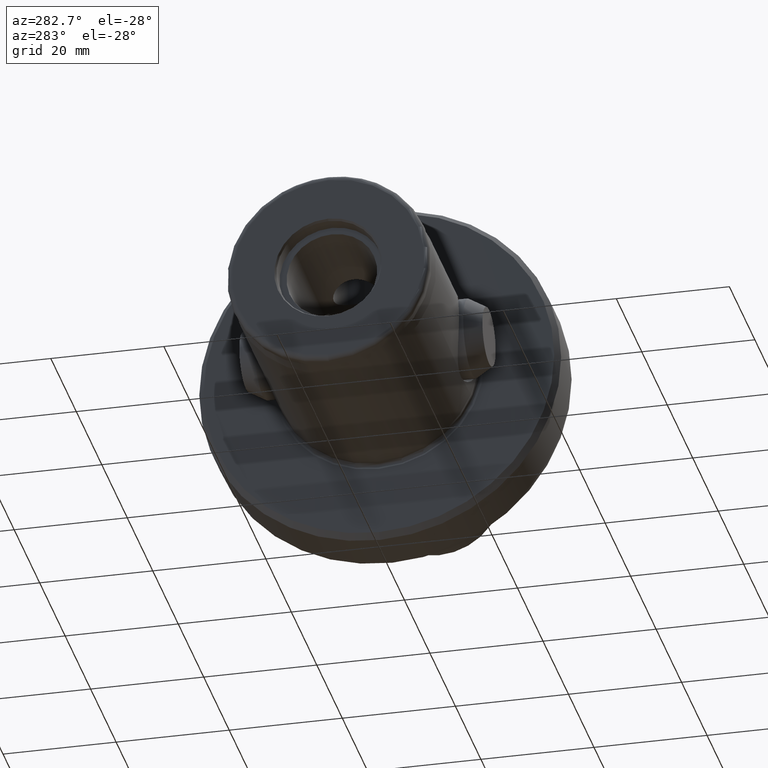
[diagram: clean part render]
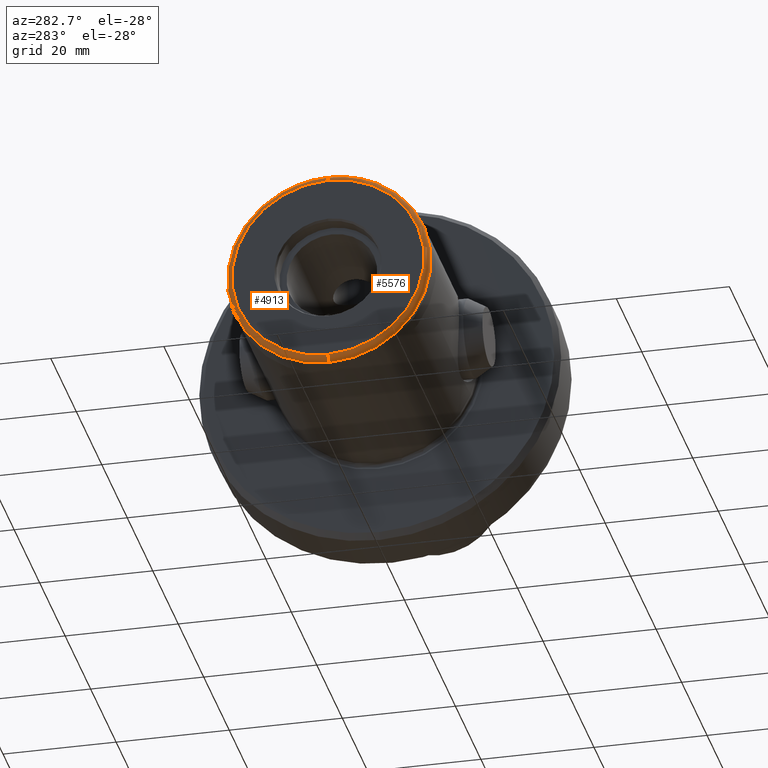
[diagram: same view with one multi-face feature highlighted, each face labeled with its STEP entity id]
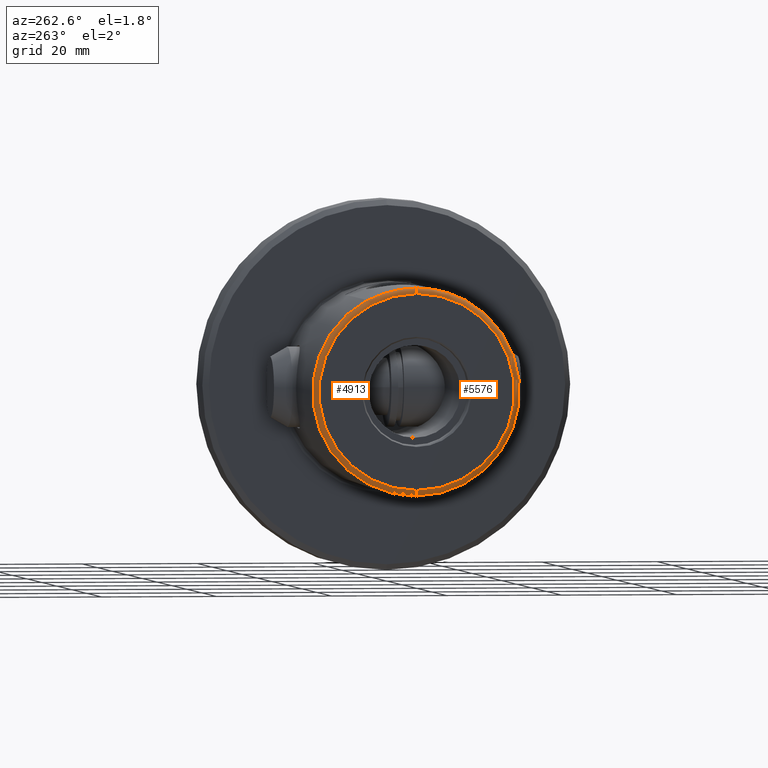
[diagram: same view with one multi-face feature highlighted, each face labeled with its STEP entity id]
A machine part, auxiliary view. The highlighted faces form ONE feature: a constant-radius fillet chain: 2 tangent blend faces with common blend radius 1 mm. The faces share edges in the B-rep.
A second angle (auxiliary view) of the same feature is appended — it is thin or edge-on in the first view.
Their STEP definitions:
[1] entity #5576 (Torus):
#52 = VERTEX_POINT ( 'NONE', #6538 ) ;
#162 = DIRECTION ( 'NONE',  ( 0.0000000000000000000, 0.0000000000000000000, 1.000000000000000000 ) ) ;
#220 = AXIS2_PLACEMENT_3D ( 'NONE', #5423, #6637, #3698 ) ;
#523 = DIRECTION ( 'NONE',  ( -1.000000000000000000, -0.0000000000000000000, -0.0000000000000000000 ) ) ;
#589 = CARTESIAN_POINT ( 'NONE',  ( 1.000000000000000000, 0.0000000000000000000, 16.99999999999999300 ) ) ;
#804 = AXIS2_PLACEMENT_3D ( 'NONE', #1608, #523, #2212 ) ;
#847 = EDGE_LOOP ( 'NONE', ( #3821, #6251, #3962, #7666, #4720, #1927 ) ) ;
#911 = VERTEX_POINT ( 'NONE', #1632 ) ;
#1004 = EDGE_CURVE ( 'NONE', #5470, #52, #7237, .T. ) ;
#1328 = TOROIDAL_SURFACE ( 'NONE', #5331, 16.99999999999999300, 0.9999999999999986700 ) ;
#1410 = CARTESIAN_POINT ( 'NONE',  ( 0.6542505968228119500, -8.499999999999998200, 15.79663165262243400 ) ) ;
#1608 = CARTESIAN_POINT ( 'NONE',  ( 1.173648177666930300, 0.0000000000000000000, 0.0000000000000000000 ) ) ;
#1632 = CARTESIAN_POINT ( 'NONE',  ( 0.6324404810102394200, 1.084901609420196100E-011, 17.93000000000000000 ) ) ;
#1754 = EDGE_CURVE ( 'NONE', #5470, #2087, #3919, .T. ) ;
#1927 = ORIENTED_EDGE ( 'NONE', *, *, #4673, .F. ) ;
#2059 = CARTESIAN_POINT ( 'NONE',  ( 0.7353313279269722000, -8.500000000000000000, 15.83055841179797200 ) ) ;
#2087 = VERTEX_POINT ( 'NONE', #7213 ) ;
#2093 = B_SPLINE_CURVE_WITH_KNOTS ( 'NONE', 3,
 ( #3819, #2640, #6880, #7501, #3894, #5060, #7480, #5083 ),
 .UNSPECIFIED., .F., .F.,
 ( 4, 2, 2, 4 ),
 ( 0.008901972889488393700, 0.01335500574124723900, 0.01558152216712666000, 0.01780803859300608000 ),
 .UNSPECIFIED. ) ;
#2212 = DIRECTION ( 'NONE',  ( 0.0000000000000000000, 0.0000000000000000000, 1.000000000000000000 ) ) ;
#2491 = CIRCLE ( 'NONE', #4109, 0.9999999999999974500 ) ;
#2640 = CARTESIAN_POINT ( 'NONE',  ( 0.6324404810102310900, -1.477174373625175700, 17.93000000000089100 ) ) ;
#2858 = DIRECTION ( 'NONE',  ( 0.0000000000000000000, 0.0000000000000000000, -1.000000000000000000 ) ) ;
#2915 = B_SPLINE_CURVE_WITH_KNOTS ( 'NONE', 3,
 ( #5048, #2059, #7440, #3269, #5262, #3472 ),
 .UNSPECIFIED., .F., .F.,
 ( 4, 2, 4 ),
 ( 0.0001466622458616963000, 0.0004103328053952654700, 0.0006740033649288346100 ),
 .UNSPECIFIED. ) ;
#2959 = DIRECTION ( 'NONE',  ( -1.000000000000000000, -0.0000000000000000000, -0.0000000000000000000 ) ) ;
#3185 = DIRECTION ( 'NONE',  ( 0.0000000000000000000, 0.0000000000000000000, 1.000000000000000000 ) ) ;
#3269 = CARTESIAN_POINT ( 'NONE',  ( 0.9975680448668020600, -8.500000000000000000, 15.87099631239577800 ) ) ;
#3472 = CARTESIAN_POINT ( 'NONE',  ( 1.173648177666928100, -8.500000000000000000, 15.84939462291252400 ) ) ;
#3676 = EDGE_CURVE ( 'NONE', #911, #4759, #2491, .T. ) ;
#3698 = DIRECTION ( 'NONE',  ( 0.0000000000000000000, -1.224646799147353700E-016, 1.000000000000000000 ) ) ;
#3819 = CARTESIAN_POINT ( 'NONE',  ( 0.6324404810102394200, 1.084901609420196100E-011, 17.93000000000000000 ) ) ;
#3821 = ORIENTED_EDGE ( 'NONE', *, *, #1754, .F. ) ;
#3894 = CARTESIAN_POINT ( 'NONE',  ( 0.6418628716970348200, -5.791349221315153200, 16.98894936551009800 ) ) ;
#3919 = CIRCLE ( 'NONE', #220, 0.9999999999999974500 ) ;
#3962 = ORIENTED_EDGE ( 'NONE', *, *, #4733, .F. ) ;
#4109 = AXIS2_PLACEMENT_3D ( 'NONE', #589, #7025, #2858 ) ;
#4132 = EDGE_CURVE ( 'NONE', #911, #4581, #2093, .T. ) ;
#4581 = VERTEX_POINT ( 'NONE', #1410 ) ;
#4673 = EDGE_CURVE ( 'NONE', #2087, #4759, #6999, .T. ) ;
#4720 = ORIENTED_EDGE ( 'NONE', *, *, #3676, .T. ) ;
#4727 = CARTESIAN_POINT ( 'NONE',  ( 1.000000000000000000, 0.0000000000000000000, 0.0000000000000000000 ) ) ;
#4733 = EDGE_CURVE ( 'NONE', #4581, #52, #2915, .T. ) ;
#4759 = VERTEX_POINT ( 'NONE', #6493 ) ;
#5048 = CARTESIAN_POINT ( 'NONE',  ( 0.6542505968228119500, -8.499999999999998200, 15.79663165262243400 ) ) ;
#5060 = CARTESIAN_POINT ( 'NONE',  ( 0.6473328774351114800, -7.171914618821857900, 16.45607394266993900 ) ) ;
#5083 = CARTESIAN_POINT ( 'NONE',  ( 0.6542505968228119500, -8.499999999999998200, 15.79663165262243400 ) ) ;
#5222 = AXIS2_PLACEMENT_3D ( 'NONE', #5527, #7308, #3185 ) ;
#5262 = CARTESIAN_POINT ( 'NONE',  ( 1.087046924922161000, -8.500000000000000000, 15.86672212925783400 ) ) ;
#5331 = AXIS2_PLACEMENT_3D ( 'NONE', #4727, #2959, #162 ) ;
#5423 = CARTESIAN_POINT ( 'NONE',  ( 1.000000000000000000, 2.081899558550499900E-015, -16.99999999999999300 ) ) ;
#5470 = VERTEX_POINT ( 'NONE', #5852 ) ;
#5527 = CARTESIAN_POINT ( 'NONE',  ( 1.301042606982605300E-015, 0.0000000000000000000, 0.0000000000000000000 ) ) ;
#5576 = ADVANCED_FACE ( 'NONE', ( #7488 ), #1328, .T. ) ;
#5852 = CARTESIAN_POINT ( 'NONE',  ( 1.173648177666930300, 2.202503724800689100E-015, -17.98480775301219800 ) ) ;
#6251 = ORIENTED_EDGE ( 'NONE', *, *, #1004, .T. ) ;
#6493 = CARTESIAN_POINT ( 'NONE',  ( 1.301042606982605300E-015, 0.0000000000000000000, 16.99999999999999300 ) ) ;
#6538 = CARTESIAN_POINT ( 'NONE',  ( 1.173648177666928100, -8.500000000000000000, 15.84939462291252400 ) ) ;
#6637 = DIRECTION ( 'NONE',  ( -0.0000000000000000000, 1.000000000000000000, 1.224646799147353200E-016 ) ) ;
#6880 = CARTESIAN_POINT ( 'NONE',  ( 0.6341946138444216600, -2.931739006507350100, 17.75087531868819800 ) ) ;
#6999 = CIRCLE ( 'NONE', #5222, 16.99999999999999300 ) ;
#7025 = DIRECTION ( 'NONE',  ( 0.0000000000000000000, -1.000000000000000000, 0.0000000000000000000 ) ) ;
#7213 = CARTESIAN_POINT ( 'NONE',  ( 1.301042606982605300E-015, 2.142201641675594700E-015, -16.99999999999999300 ) ) ;
#7237 = CIRCLE ( 'NONE', #804, 17.98480775301219800 ) ;
#7308 = DIRECTION ( 'NONE',  ( -1.000000000000000000, -0.0000000000000000000, -0.0000000000000000000 ) ) ;
#7440 = CARTESIAN_POINT ( 'NONE',  ( 0.8226130981639858700, -8.500000000000000000, 15.85307747733669200 ) ) ;
#7480 = CARTESIAN_POINT ( 'NONE',  ( 0.6505332994144168400, -7.844784301745543900, 16.14764083699741100 ) ) ;
#7488 = FACE_OUTER_BOUND ( 'NONE', #847, .T. ) ;
#7501 = CARTESIAN_POINT ( 'NONE',  ( 0.6395865202884518700, -5.079749327030166100, 17.21412044207524200 ) ) ;
#7666 = ORIENTED_EDGE ( 'NONE', *, *, #4132, .F. ) ;
[2] entity #4913 (Torus):
#10 = CARTESIAN_POINT ( 'NONE',  ( 0.6324404810102417500, 0.3691144895278956600, 17.92999999999978300 ) ) ;
#108 = DIRECTION ( 'NONE',  ( -1.000000000000000000, -0.0000000000000000000, -0.0000000000000000000 ) ) ;
#204 = CARTESIAN_POINT ( 'NONE',  ( 1.087489751224860900, 8.500000000000003600, 15.86663352689551800 ) ) ;
#220 = AXIS2_PLACEMENT_3D ( 'NONE', #5423, #6637, #3698 ) ;
#274 = DIRECTION ( 'NONE',  ( 0.0000000000000000000, 0.0000000000000000000, 1.000000000000000000 ) ) ;
#315 = CARTESIAN_POINT ( 'NONE',  ( 0.9981222527496900200, 8.500000000000003600, 15.87105069833618200 ) ) ;
#589 = CARTESIAN_POINT ( 'NONE',  ( 1.000000000000000000, 0.0000000000000000000, 16.99999999999999300 ) ) ;
#690 = DIRECTION ( 'NONE',  ( 0.0000000000000000000, 0.0000000000000000000, 1.000000000000000000 ) ) ;
#911 = VERTEX_POINT ( 'NONE', #1632 ) ;
#1289 = CARTESIAN_POINT ( 'NONE',  ( 1.000000000000000000, 0.0000000000000000000, 0.0000000000000000000 ) ) ;
#1389 = VERTEX_POINT ( 'NONE', #3367 ) ;
#1471 = DIRECTION ( 'NONE',  ( -1.000000000000000000, -0.0000000000000000000, -0.0000000000000000000 ) ) ;
#1632 = CARTESIAN_POINT ( 'NONE',  ( 0.6324404810102394200, 1.084901609420196100E-011, 17.93000000000000000 ) ) ;
#1754 = EDGE_CURVE ( 'NONE', #5470, #2087, #3919, .T. ) ;
#1770 = CARTESIAN_POINT ( 'NONE',  ( 0.6418423092002324400, 5.785599335574096000, 16.99096693161065000 ) ) ;
#1836 = DIRECTION ( 'NONE',  ( -1.000000000000000000, -0.0000000000000000000, -0.0000000000000000000 ) ) ;
#2032 = CIRCLE ( 'NONE', #2893, 17.98480775301219800 ) ;
#2087 = VERTEX_POINT ( 'NONE', #7213 ) ;
#2191 = ORIENTED_EDGE ( 'NONE', *, *, #7422, .F. ) ;
#2272 = CARTESIAN_POINT ( 'NONE',  ( 0.6330054133423558300, 1.480283589093579000, 17.87285194226907200 ) ) ;
#2330 = CARTESIAN_POINT ( 'NONE',  ( 0.6396017394597263200, 5.084105004543580700, 17.21261888832962900 ) ) ;
#2359 = AXIS2_PLACEMENT_3D ( 'NONE', #3255, #1471, #274 ) ;
#2404 = EDGE_CURVE ( 'NONE', #3336, #5470, #2032, .T. ) ;
#2491 = CIRCLE ( 'NONE', #4109, 0.9999999999999974500 ) ;
#2858 = DIRECTION ( 'NONE',  ( 0.0000000000000000000, 0.0000000000000000000, -1.000000000000000000 ) ) ;
#2888 = ORIENTED_EDGE ( 'NONE', *, *, #3676, .F. ) ;
#2893 = AXIS2_PLACEMENT_3D ( 'NONE', #6102, #1836, #3115 ) ;
#2912 = CARTESIAN_POINT ( 'NONE',  ( 0.6325534606832645700, 0.7409511913278217200, 17.91855654738308700 ) ) ;
#2937 = CARTESIAN_POINT ( 'NONE',  ( 0.6360243831397884900, 3.662361259201910800, 17.56871166904120700 ) ) ;
#2983 = CARTESIAN_POINT ( 'NONE',  ( 0.6542505968227946300, 8.500000000000001800, 15.79663165262242700 ) ) ;
#3115 = DIRECTION ( 'NONE',  ( 0.0000000000000000000, 0.0000000000000000000, 1.000000000000000000 ) ) ;
#3224 = CARTESIAN_POINT ( 'NONE',  ( 0.6542505968227946300, 8.500000000000001800, 15.79663165262242700 ) ) ;
#3254 = B_SPLINE_CURVE_WITH_KNOTS ( 'NONE', 3,
 ( #2983, #6472, #4116, #1770, #2330, #2937, #7111, #7630, #2272, #2912, #10, #6447 ),
 .UNSPECIFIED., .F., .F.,
 ( 4, 2, 2, 2, 2, 4 ),
 ( 2.265434088413060900E-007, 0.002225663129928729400, 0.004451099716448617500, 0.006676536302968505600, 0.007789254596228449200, 0.008901972889488393700 ),
 .UNSPECIFIED. ) ;
#3255 = CARTESIAN_POINT ( 'NONE',  ( 1.301042606982605300E-015, 0.0000000000000000000, 0.0000000000000000000 ) ) ;
#3336 = VERTEX_POINT ( 'NONE', #7275 ) ;
#3367 = CARTESIAN_POINT ( 'NONE',  ( 0.6542505968227946300, 8.500000000000001800, 15.79663165262242700 ) ) ;
#3407 = CARTESIAN_POINT ( 'NONE',  ( 0.7363995605874896800, 8.500000000000001800, 15.83100539435132800 ) ) ;
#3676 = EDGE_CURVE ( 'NONE', #911, #4759, #2491, .T. ) ;
#3698 = DIRECTION ( 'NONE',  ( 0.0000000000000000000, -1.224646799147353700E-016, 1.000000000000000000 ) ) ;
#3919 = CIRCLE ( 'NONE', #220, 0.9999999999999974500 ) ;
#4075 = B_SPLINE_CURVE_WITH_KNOTS ( 'NONE', 3,
 ( #6839, #204, #315, #6369, #3407, #3224 ),
 .UNSPECIFIED., .F., .F.,
 ( 4, 2, 4 ),
 ( 0.006068213492623650500, 0.006330788072026511000, 0.006593362651429371600 ),
 .UNSPECIFIED. ) ;
#4109 = AXIS2_PLACEMENT_3D ( 'NONE', #589, #7025, #2858 ) ;
#4116 = CARTESIAN_POINT ( 'NONE',  ( 0.6473197686636039700, 7.169162838992922300, 16.45733664270533600 ) ) ;
#4593 = FACE_OUTER_BOUND ( 'NONE', #7328, .T. ) ;
#4759 = VERTEX_POINT ( 'NONE', #6493 ) ;
#4783 = EDGE_CURVE ( 'NONE', #1389, #911, #3254, .T. ) ;
#4866 = CIRCLE ( 'NONE', #2359, 16.99999999999999300 ) ;
#4913 = ADVANCED_FACE ( 'NONE', ( #4593 ), #7495, .T. ) ;
#4984 = ORIENTED_EDGE ( 'NONE', *, *, #2404, .T. ) ;
#5266 = ORIENTED_EDGE ( 'NONE', *, *, #4783, .F. ) ;
#5294 = EDGE_CURVE ( 'NONE', #4759, #2087, #4866, .T. ) ;
#5423 = CARTESIAN_POINT ( 'NONE',  ( 1.000000000000000000, 2.081899558550499900E-015, -16.99999999999999300 ) ) ;
#5470 = VERTEX_POINT ( 'NONE', #5852 ) ;
#5852 = CARTESIAN_POINT ( 'NONE',  ( 1.173648177666930300, 2.202503724800689100E-015, -17.98480775301219800 ) ) ;
#6102 = CARTESIAN_POINT ( 'NONE',  ( 1.173648177666930300, 0.0000000000000000000, 0.0000000000000000000 ) ) ;
#6342 = AXIS2_PLACEMENT_3D ( 'NONE', #1289, #108, #690 ) ;
#6369 = CARTESIAN_POINT ( 'NONE',  ( 0.8221058920410904100, 8.500000000000001800, 15.85302790466864800 ) ) ;
#6447 = CARTESIAN_POINT ( 'NONE',  ( 0.6324404810102394200, 1.084901609420196100E-011, 17.93000000000000000 ) ) ;
#6472 = CARTESIAN_POINT ( 'NONE',  ( 0.6505351002739575600, 7.845101723602740100, 16.14747078919852500 ) ) ;
#6493 = CARTESIAN_POINT ( 'NONE',  ( 1.301042606982605300E-015, 0.0000000000000000000, 16.99999999999999300 ) ) ;
#6637 = DIRECTION ( 'NONE',  ( -0.0000000000000000000, 1.000000000000000000, 1.224646799147353200E-016 ) ) ;
#6726 = ORIENTED_EDGE ( 'NONE', *, *, #5294, .F. ) ;
#6839 = CARTESIAN_POINT ( 'NONE',  ( 1.173648177666930300, 8.500000000000001800, 15.84939462291249900 ) ) ;
#7025 = DIRECTION ( 'NONE',  ( 0.0000000000000000000, -1.000000000000000000, 0.0000000000000000000 ) ) ;
#7111 = CARTESIAN_POINT ( 'NONE',  ( 0.6346880122386193700, 2.942110066759029000, 17.70314422804933600 ) ) ;
#7213 = CARTESIAN_POINT ( 'NONE',  ( 1.301042606982605300E-015, 2.142201641675594700E-015, -16.99999999999999300 ) ) ;
#7275 = CARTESIAN_POINT ( 'NONE',  ( 1.173648177666930300, 8.500000000000001800, 15.84939462291249900 ) ) ;
#7328 = EDGE_LOOP ( 'NONE', ( #4984, #7635, #6726, #2888, #5266, #2191 ) ) ;
#7422 = EDGE_CURVE ( 'NONE', #3336, #1389, #4075, .T. ) ;
#7495 = TOROIDAL_SURFACE ( 'NONE', #6342, 16.99999999999999300, 0.9999999999999986700 ) ;
#7630 = CARTESIAN_POINT ( 'NONE',  ( 0.6333432282314102000, 1.847521542121688400, 17.83870824488434400 ) ) ;
#7635 = ORIENTED_EDGE ( 'NONE', *, *, #1754, .T. ) ;